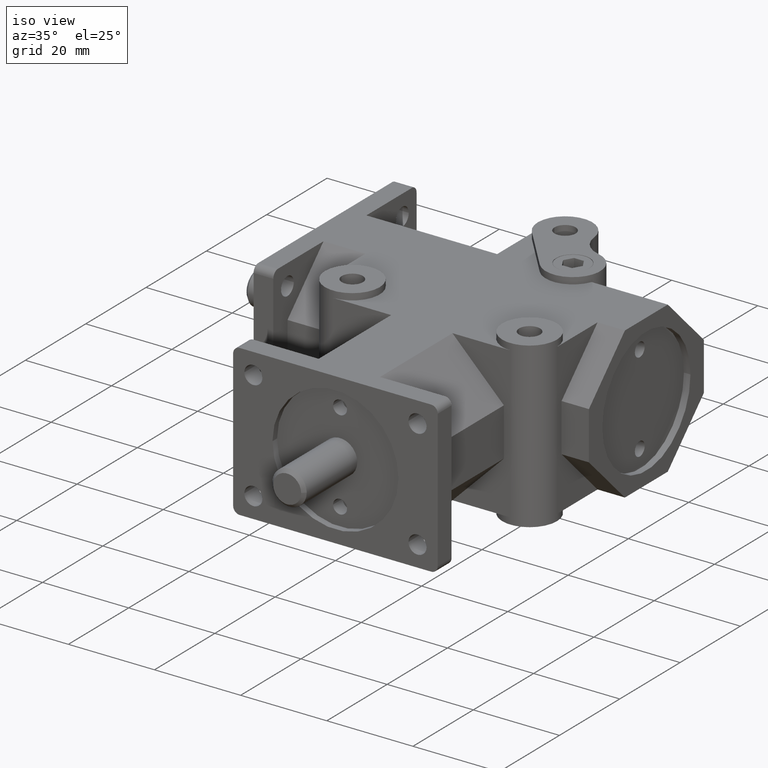
[diagram: clean part render]
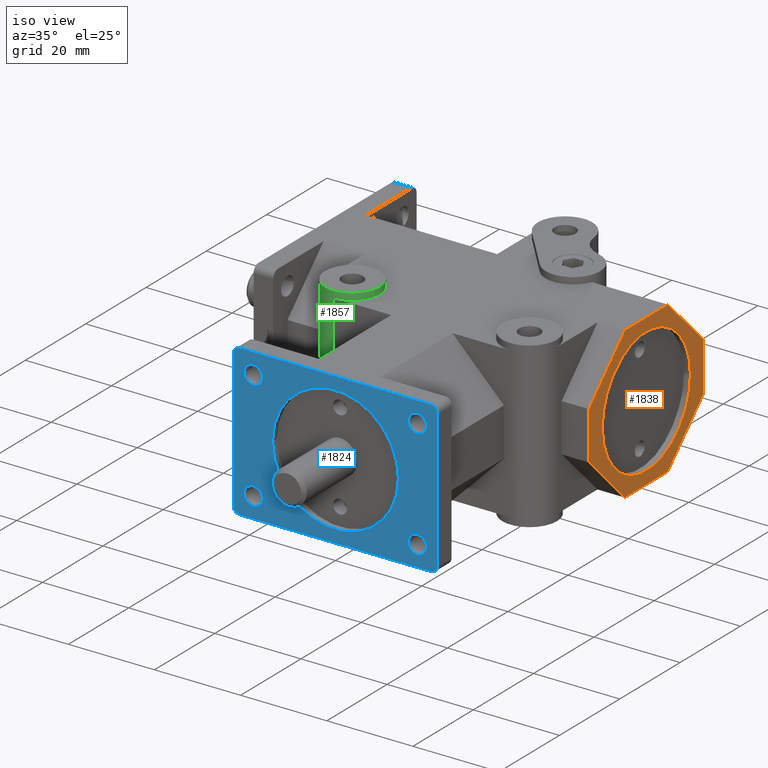
[diagram: same view with three faces highlighted in distinct colors, each labeled with its STEP entity id]
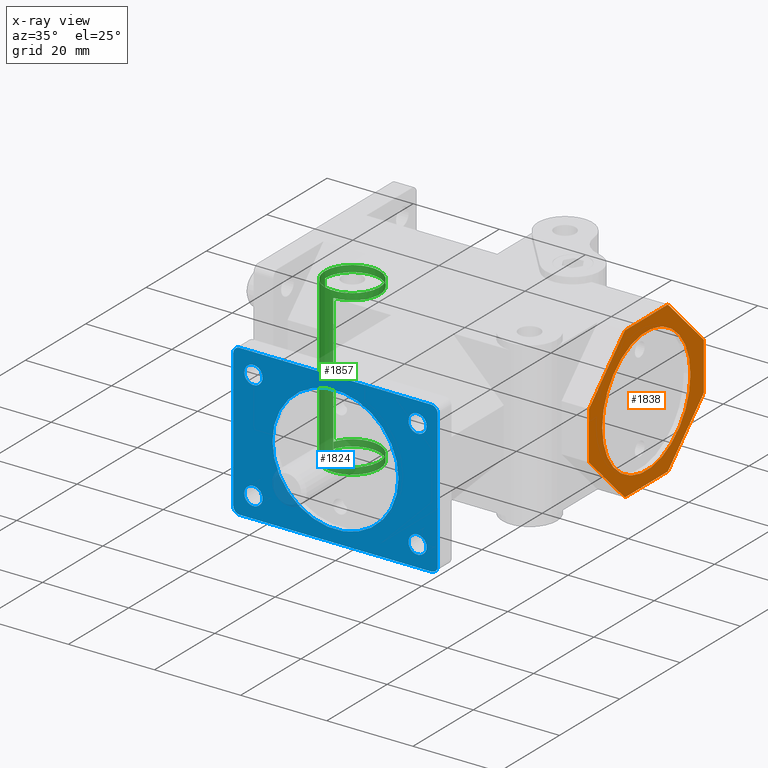
[diagram: x-ray of the same camera — body ghosted, the three highlighted faces saturated]
A machine part, iso view with three faces highlighted in distinct colors.
The next image is the same camera in x-ray (body ghosted, the three faces saturated) — at least one of them is partly hidden behind the body in this view.
Their STEP definitions:

[orange] entity #1838 — the highlighted planar face has unit normal (-1, 0, 0).
#37=FACE_BOUND('',#291,.T.);
#75=PLANE('',#2025);
#166=FACE_OUTER_BOUND('',#290,.T.);
#290=EDGE_LOOP('',(#1473,#1474,#1475,#1476,#1477,#1478,#1479,#1480));
#291=EDGE_LOOP('',(#1481));
#380=CIRCLE('',#1936,14.6177);
#499=LINE('',#2881,#672);
#513=LINE('',#2923,#686);
#546=LINE('',#3009,#719);
#547=LINE('',#3010,#720);
#548=LINE('',#3012,#721);
#549=LINE('',#3014,#722);
#550=LINE('',#3015,#723);
#551=LINE('',#3016,#724);
#672=VECTOR('',#2326,1.);
#686=VECTOR('',#2360,1.);
#719=VECTOR('',#2435,1.);
#720=VECTOR('',#2436,1.);
#721=VECTOR('',#2437,1.);
#722=VECTOR('',#2438,1.);
#723=VECTOR('',#2439,1.);
#724=VECTOR('',#2440,1.);
#817=VERTEX_POINT('',#2725);
#874=VERTEX_POINT('',#2878);
#875=VERTEX_POINT('',#2880);
#892=VERTEX_POINT('',#2920);
#893=VERTEX_POINT('',#2922);
#924=VERTEX_POINT('',#3007);
#925=VERTEX_POINT('',#3008);
#926=VERTEX_POINT('',#3011);
#927=VERTEX_POINT('',#3013);
#998=EDGE_CURVE('',#817,#817,#380,.T.);
#1069=EDGE_CURVE('',#874,#875,#499,.T.);
#1091=EDGE_CURVE('',#892,#893,#513,.T.);
#1134=EDGE_CURVE('',#924,#925,#546,.T.);
#1135=EDGE_CURVE('',#875,#924,#547,.T.);
#1136=EDGE_CURVE('',#926,#874,#548,.T.);
#1137=EDGE_CURVE('',#927,#926,#549,.T.);
#1138=EDGE_CURVE('',#893,#927,#550,.T.);
#1139=EDGE_CURVE('',#925,#892,#551,.T.);
#1473=ORIENTED_EDGE('',*,*,#1134,.F.);
#1474=ORIENTED_EDGE('',*,*,#1135,.F.);
#1475=ORIENTED_EDGE('',*,*,#1069,.F.);
#1476=ORIENTED_EDGE('',*,*,#1136,.F.);
#1477=ORIENTED_EDGE('',*,*,#1137,.F.);
#1478=ORIENTED_EDGE('',*,*,#1138,.F.);
#1479=ORIENTED_EDGE('',*,*,#1091,.F.);
#1480=ORIENTED_EDGE('',*,*,#1139,.F.);
#1481=ORIENTED_EDGE('',*,*,#998,.T.);
#1838=ADVANCED_FACE('',(#166,#37),#75,.F.);
#1936=AXIS2_PLACEMENT_3D('',#2726,#2170,#2171);
#2025=AXIS2_PLACEMENT_3D('',#3006,#2433,#2434);
#2170=DIRECTION('center_axis',(-1.,0.,0.));
#2171=DIRECTION('ref_axis',(0.,-1.,0.));
#2326=DIRECTION('',(0.,-1.,0.));
#2360=DIRECTION('',(0.,1.,0.));
#2433=DIRECTION('center_axis',(-1.,0.,0.));
#2434=DIRECTION('ref_axis',(0.,1.,0.));
#2435=DIRECTION('',(0.,0.,1.));
#2436=DIRECTION('',(0.,-0.707106781186547,0.707106781186548));
#2437=DIRECTION('',(0.,-0.707106781186548,-0.707106781186547));
#2438=DIRECTION('',(0.,0.,-1.));
#2439=DIRECTION('',(0.,0.707106781186548,-0.707106781186547));
#2440=DIRECTION('',(0.,0.707106781186547,0.707106781186548));
#2725=CARTESIAN_POINT('',(33.274,70.1802,-1.79015195158963E-15));
#2726=CARTESIAN_POINT('Origin',(33.274,55.5625,0.));
#2878=CARTESIAN_POINT('',(33.274,62.6745,-17.526));
#2880=CARTESIAN_POINT('',(33.274,48.4505,-17.526));
#2881=CARTESIAN_POINT('',(33.274,10.9604956985517,-17.526));
#2920=CARTESIAN_POINT('',(33.274,48.4505,17.526));
#2922=CARTESIAN_POINT('',(33.274,62.6745,17.526));
#2923=CARTESIAN_POINT('',(33.274,10.9604956985517,17.526));
#3006=CARTESIAN_POINT('Origin',(33.274,-20.782255235,-311.069668609783));
#3007=CARTESIAN_POINT('',(33.274,36.5125,-5.588));
#3008=CARTESIAN_POINT('',(33.274,36.5125,5.588));
#3009=CARTESIAN_POINT('',(33.274,36.5125,-155.534834304891));
#3010=CARTESIAN_POINT('',(33.274,101.543728343696,-70.6192283436957));
#3011=CARTESIAN_POINT('',(33.274,74.6125,-5.588));
#3012=CARTESIAN_POINT('',(33.274,-28.5911059611957,-108.791605961196));
#3013=CARTESIAN_POINT('',(33.274,74.6125,5.588));
#3014=CARTESIAN_POINT('',(33.274,74.6125,-155.534834304891));
#3015=CARTESIAN_POINT('',(33.274,126.943728343696,-46.7432283436956));
#3016=CARTESIAN_POINT('',(33.274,-53.9911059611957,-84.9156059611957));

[blue] entity #1824 — the highlighted planar face has unit normal (0, -1, 0).
#25=FACE_BOUND('',#265,.T.);
#26=FACE_BOUND('',#266,.T.);
#27=FACE_BOUND('',#267,.T.);
#28=FACE_BOUND('',#268,.T.);
#29=FACE_BOUND('',#269,.T.);
#63=PLANE('',#1988);
#152=FACE_OUTER_BOUND('',#264,.T.);
#264=EDGE_LOOP('',(#1347,#1348,#1349,#1350,#1351,#1352,#1353,#1354));
#265=EDGE_LOOP('',(#1355));
#266=EDGE_LOOP('',(#1356));
#267=EDGE_LOOP('',(#1357));
#268=EDGE_LOOP('',(#1358));
#269=EDGE_LOOP('',(#1359));
#382=CIRCLE('',#1939,14.6177);
#392=CIRCLE('',#1965,1.524);
#394=CIRCLE('',#1968,1.524);
#396=CIRCLE('',#1971,1.524);
#398=CIRCLE('',#1974,1.524);
#408=CIRCLE('',#1989,2.1082);
#409=CIRCLE('',#1990,2.1082);
#410=CIRCLE('',#1991,2.1082);
#411=CIRCLE('',#1992,2.1082);
#483=LINE('',#2844,#656);
#484=LINE('',#2845,#657);
#485=LINE('',#2846,#658);
#486=LINE('',#2847,#659);
#656=VECTOR('',#2298,1.);
#657=VECTOR('',#2299,1.);
#658=VECTOR('',#2300,1.);
#659=VECTOR('',#2301,1.);
#819=VERTEX_POINT('',#2731);
#829=VERTEX_POINT('',#2772);
#830=VERTEX_POINT('',#2773);
#833=VERTEX_POINT('',#2781);
#834=VERTEX_POINT('',#2782);
#837=VERTEX_POINT('',#2790);
#838=VERTEX_POINT('',#2791);
#841=VERTEX_POINT('',#2799);
#842=VERTEX_POINT('',#2800);
#861=VERTEX_POINT('',#2848);
#862=VERTEX_POINT('',#2850);
#863=VERTEX_POINT('',#2852);
#864=VERTEX_POINT('',#2854);
#1001=EDGE_CURVE('',#819,#819,#382,.T.);
#1016=EDGE_CURVE('',#829,#830,#392,.T.);
#1020=EDGE_CURVE('',#833,#834,#394,.T.);
#1024=EDGE_CURVE('',#837,#838,#396,.T.);
#1028=EDGE_CURVE('',#841,#842,#398,.T.);
#1048=EDGE_CURVE('',#829,#842,#483,.T.);
#1049=EDGE_CURVE('',#838,#841,#484,.T.);
#1050=EDGE_CURVE('',#837,#834,#485,.T.);
#1051=EDGE_CURVE('',#833,#830,#486,.T.);
#1052=EDGE_CURVE('',#861,#861,#408,.T.);
#1053=EDGE_CURVE('',#862,#862,#409,.T.);
#1054=EDGE_CURVE('',#863,#863,#410,.T.);
#1055=EDGE_CURVE('',#864,#864,#411,.T.);
#1347=ORIENTED_EDGE('',*,*,#1016,.F.);
#1348=ORIENTED_EDGE('',*,*,#1048,.T.);
#1349=ORIENTED_EDGE('',*,*,#1028,.F.);
#1350=ORIENTED_EDGE('',*,*,#1049,.F.);
#1351=ORIENTED_EDGE('',*,*,#1024,.F.);
#1352=ORIENTED_EDGE('',*,*,#1050,.T.);
#1353=ORIENTED_EDGE('',*,*,#1020,.F.);
#1354=ORIENTED_EDGE('',*,*,#1051,.T.);
#1355=ORIENTED_EDGE('',*,*,#1001,.T.);
#1356=ORIENTED_EDGE('',*,*,#1052,.T.);
#1357=ORIENTED_EDGE('',*,*,#1053,.T.);
#1358=ORIENTED_EDGE('',*,*,#1054,.T.);
#1359=ORIENTED_EDGE('',*,*,#1055,.T.);
#1824=ADVANCED_FACE('',(#152,#25,#26,#27,#28,#29),#63,.T.);
#1939=AXIS2_PLACEMENT_3D('',#2732,#2177,#2178);
#1965=AXIS2_PLACEMENT_3D('',#2774,#2234,#2235);
#1968=AXIS2_PLACEMENT_3D('',#2783,#2242,#2243);
#1971=AXIS2_PLACEMENT_3D('',#2792,#2250,#2251);
#1974=AXIS2_PLACEMENT_3D('',#2801,#2258,#2259);
#1988=AXIS2_PLACEMENT_3D('',#2843,#2296,#2297);
#1989=AXIS2_PLACEMENT_3D('',#2849,#2302,#2303);
#1990=AXIS2_PLACEMENT_3D('',#2851,#2304,#2305);
#1991=AXIS2_PLACEMENT_3D('',#2853,#2306,#2307);
#1992=AXIS2_PLACEMENT_3D('',#2855,#2308,#2309);
#2177=DIRECTION('center_axis',(0.,1.,0.));
#2178=DIRECTION('ref_axis',(1.,0.,0.));
#2234=DIRECTION('center_axis',(0.,1.,0.));
#2235=DIRECTION('ref_axis',(0.707106781186548,0.,0.707106781186548));
#2242=DIRECTION('center_axis',(0.,1.,0.));
#2243=DIRECTION('ref_axis',(0.707106781186548,0.,-0.707106781186548));
#2250=DIRECTION('center_axis',(0.,1.,0.));
#2251=DIRECTION('ref_axis',(-0.707106781186548,0.,-0.707106781186548));
#2258=DIRECTION('center_axis',(0.,1.,0.));
#2259=DIRECTION('ref_axis',(-0.707106781186548,0.,0.707106781186548));
#2296=DIRECTION('center_axis',(0.,-1.,0.));
#2297=DIRECTION('ref_axis',(0.,0.,1.));
#2298=DIRECTION('',(-1.,0.,0.));
#2299=DIRECTION('',(0.,0.,1.));
#2300=DIRECTION('',(1.,0.,0.));
#2301=DIRECTION('',(0.,0.,1.));
#2302=DIRECTION('center_axis',(0.,1.,0.));
#2303=DIRECTION('ref_axis',(1.,0.,0.));
#2304=DIRECTION('center_axis',(0.,1.,0.));
#2305=DIRECTION('ref_axis',(1.,0.,0.));
#2306=DIRECTION('center_axis',(0.,1.,0.));
#2307=DIRECTION('ref_axis',(1.,0.,0.));
#2308=DIRECTION('center_axis',(0.,1.,0.));
#2309=DIRECTION('ref_axis',(1.,0.,0.));
#2731=CARTESIAN_POINT('',(-14.6177,0.,1.79015195158963E-15));
#2732=CARTESIAN_POINT('Origin',(0.,0.,0.));
#2772=CARTESIAN_POINT('',(22.225,0.,17.526));
#2773=CARTESIAN_POINT('',(23.749,0.,16.002));
#2774=CARTESIAN_POINT('Origin',(22.225,0.,16.002));
#2781=CARTESIAN_POINT('',(23.749,0.,-16.002));
#2782=CARTESIAN_POINT('',(22.225,0.,-17.526));
#2783=CARTESIAN_POINT('Origin',(22.225,0.,-16.002));
#2790=CARTESIAN_POINT('',(-22.225,0.,-17.526));
#2791=CARTESIAN_POINT('',(-23.749,0.,-16.002));
#2792=CARTESIAN_POINT('Origin',(-22.225,0.,-16.002));
#2799=CARTESIAN_POINT('',(-23.749,0.,16.002));
#2800=CARTESIAN_POINT('',(-22.225,0.,17.526));
#2801=CARTESIAN_POINT('Origin',(-22.225,0.,16.002));
#2843=CARTESIAN_POINT('Origin',(23.749,0.,0.));
#2844=CARTESIAN_POINT('',(23.749,0.,17.526));
#2845=CARTESIAN_POINT('',(-23.749,0.,0.));
#2846=CARTESIAN_POINT('',(23.749,0.,-17.526));
#2847=CARTESIAN_POINT('',(23.749,0.,0.));
#2848=CARTESIAN_POINT('',(16.9418,0.,12.7));
#2849=CARTESIAN_POINT('Origin',(19.05,0.,12.7));
#2850=CARTESIAN_POINT('',(-21.1582,0.,-12.7));
#2851=CARTESIAN_POINT('Origin',(-19.05,0.,-12.7));
#2852=CARTESIAN_POINT('',(-21.1582,0.,12.7));
#2853=CARTESIAN_POINT('Origin',(-19.05,0.,12.7));
#2854=CARTESIAN_POINT('',(16.9418,0.,-12.7));
#2855=CARTESIAN_POINT('Origin',(19.05,0.,-12.7));

[green] entity #1857 — the highlighted cylindrical surface (bore or boss wall) has radius 6.35 mm, axis along (0, 0, 1).
#185=FACE_OUTER_BOUND('',#314,.T.);
#314=EDGE_LOOP('',(#1570,#1571,#1572,#1573,#1574,#1575,#1576,#1577,#1578,
#1579));
#412=CIRCLE('',#1994,6.35);
#423=CIRCLE('',#2007,6.35);
#435=CIRCLE('',#2049,6.35);
#436=CIRCLE('',#2050,6.35);
#594=LINE('',#3106,#767);
#595=LINE('',#3110,#768);
#596=LINE('',#3112,#769);
#597=LINE('',#3114,#770);
#767=VECTOR('',#2527,1.);
#768=VECTOR('',#2532,6.35);
#769=VECTOR('',#2533,6.35);
#770=VECTOR('',#2536,1.);
#867=VERTEX_POINT('',#2861);
#868=VERTEX_POINT('',#2863);
#901=VERTEX_POINT('',#2940);
#902=VERTEX_POINT('',#2942);
#953=VERTEX_POINT('',#3108);
#954=VERTEX_POINT('',#3111);
#1059=EDGE_CURVE('',#867,#868,#412,.T.);
#1102=EDGE_CURVE('',#901,#902,#423,.T.);
#1186=EDGE_CURVE('',#868,#901,#594,.T.);
#1187=EDGE_CURVE('',#953,#953,#435,.T.);
#1188=EDGE_CURVE('',#953,#901,#595,.T.);
#1189=EDGE_CURVE('',#868,#954,#596,.T.);
#1190=EDGE_CURVE('',#954,#954,#436,.T.);
#1191=EDGE_CURVE('',#867,#902,#597,.T.);
#1570=ORIENTED_EDGE('',*,*,#1187,.T.);
#1571=ORIENTED_EDGE('',*,*,#1188,.T.);
#1572=ORIENTED_EDGE('',*,*,#1186,.F.);
#1573=ORIENTED_EDGE('',*,*,#1189,.T.);
#1574=ORIENTED_EDGE('',*,*,#1190,.T.);
#1575=ORIENTED_EDGE('',*,*,#1189,.F.);
#1576=ORIENTED_EDGE('',*,*,#1059,.F.);
#1577=ORIENTED_EDGE('',*,*,#1191,.T.);
#1578=ORIENTED_EDGE('',*,*,#1102,.F.);
#1579=ORIENTED_EDGE('',*,*,#1188,.F.);
#1777=CYLINDRICAL_SURFACE('',#2048,6.35);
#1857=ADVANCED_FACE('',(#185),#1777,.T.);
#1994=AXIS2_PLACEMENT_3D('',#2864,#2315,#2316);
#2007=AXIS2_PLACEMENT_3D('',#2943,#2373,#2374);
#2048=AXIS2_PLACEMENT_3D('',#3107,#2528,#2529);
#2049=AXIS2_PLACEMENT_3D('',#3109,#2530,#2531);
#2050=AXIS2_PLACEMENT_3D('',#3113,#2534,#2535);
#2315=DIRECTION('center_axis',(0.,0.,1.));
#2316=DIRECTION('ref_axis',(1.,0.,0.));
#2373=DIRECTION('center_axis',(0.,0.,-1.));
#2374=DIRECTION('ref_axis',(1.,0.,0.));
#2527=DIRECTION('',(0.,0.,1.));
#2528=DIRECTION('center_axis',(0.,0.,1.));
#2529=DIRECTION('ref_axis',(1.,0.,0.));
#2530=DIRECTION('center_axis',(0.,0.,-1.));
#2531=DIRECTION('ref_axis',(1.,0.,0.));
#2532=DIRECTION('',(0.,0.,-1.));
#2533=DIRECTION('',(0.,0.,-1.));
#2534=DIRECTION('center_axis',(0.,0.,1.));
#2535=DIRECTION('ref_axis',(1.,0.,0.));
#2536=DIRECTION('',(0.,0.,1.));
#2861=CARTESIAN_POINT('',(-20.574,28.6385,-17.526));
#2863=CARTESIAN_POINT('',(-26.924,34.9885,-17.526));
#2864=CARTESIAN_POINT('Origin',(-20.574,34.9885,-17.526));
#2940=CARTESIAN_POINT('',(-26.924,34.9885,17.526));
#2942=CARTESIAN_POINT('',(-20.574,28.6385,17.526));
#2943=CARTESIAN_POINT('Origin',(-20.574,34.9885,17.526));
#3106=CARTESIAN_POINT('',(-26.924,34.9885,0.));
#3107=CARTESIAN_POINT('Origin',(-20.574,34.9885,0.));
#3108=CARTESIAN_POINT('',(-26.924,34.9885,19.05));
#3109=CARTESIAN_POINT('Origin',(-20.574,34.9885,19.05));
#3110=CARTESIAN_POINT('',(-26.924,34.9885,0.));
#3111=CARTESIAN_POINT('',(-26.924,34.9885,-19.05));
#3112=CARTESIAN_POINT('',(-26.924,34.9885,0.));
#3113=CARTESIAN_POINT('Origin',(-20.574,34.9885,-19.05));
#3114=CARTESIAN_POINT('',(-20.574,28.6385,0.));